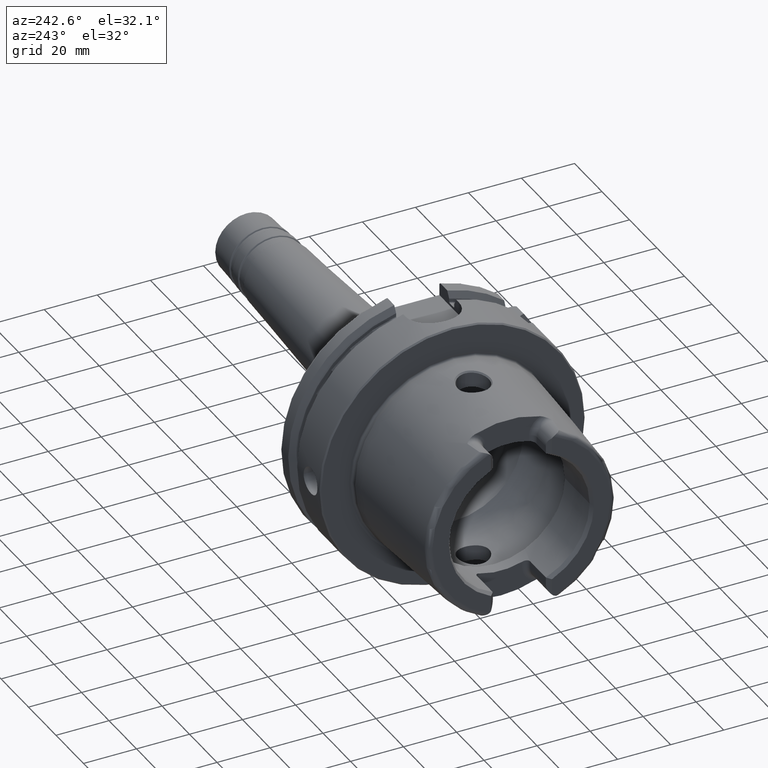
[diagram: clean part render]
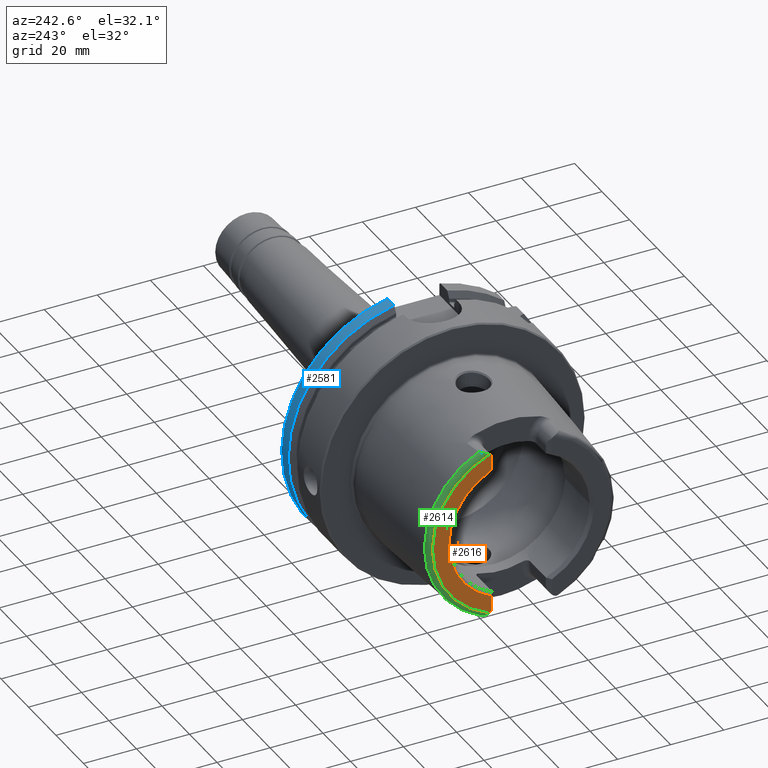
[diagram: same view with three faces highlighted in distinct colors, each labeled with its STEP entity id]
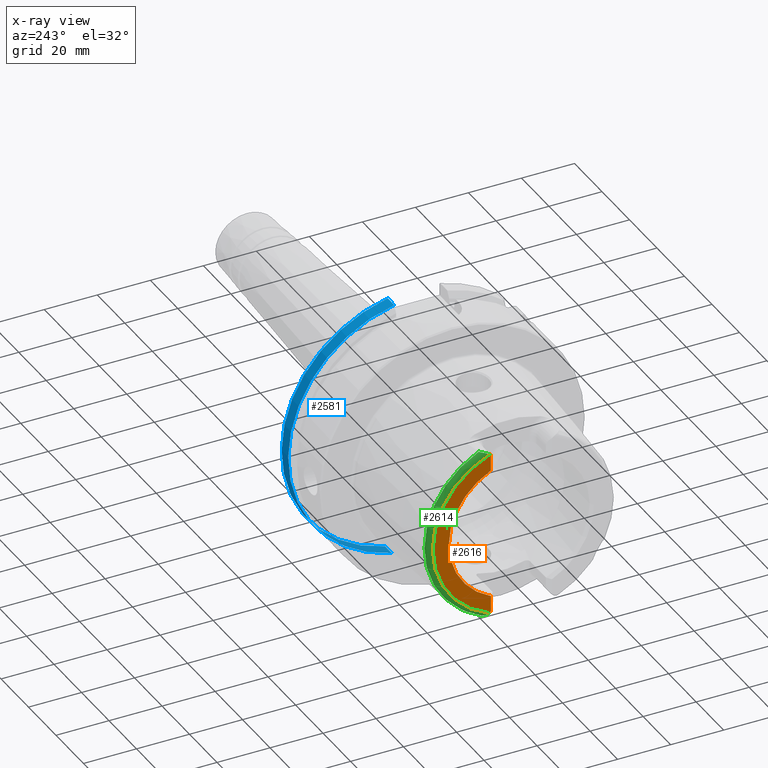
[diagram: x-ray of the same camera — body ghosted, the three highlighted faces saturated]
A machine part, auxiliary view with three faces highlighted in distinct colors.
The next image is the same camera in x-ray (body ghosted, the three faces saturated) — at least one of them is partly hidden behind the body in this view.
Their STEP definitions:

[orange] entity #2616 — the highlighted planar face has unit normal (-1, 0, 0).
#170=PLANE('',#2962);
#202=LINE('',#4135,#316);
#214=LINE('',#4246,#328);
#316=VECTOR('',#3323,10.);
#328=VECTOR('',#3383,10.);
#539=FACE_OUTER_BOUND('',#680,.T.);
#680=EDGE_LOOP('',(#2338,#2339,#2340,#2341,#2342,#2343));
#808=CIRCLE('',#2797,4.88);
#819=CIRCLE('',#2822,4.88);
#889=CIRCLE('',#2953,27.3660254037844);
#890=CIRCLE('',#2957,33.6001839277785);
#1030=VERTEX_POINT('',#4128);
#1033=VERTEX_POINT('',#4133);
#1036=VERTEX_POINT('',#4143);
#1057=VERTEX_POINT('',#4243);
#1058=VERTEX_POINT('',#4245);
#1063=VERTEX_POINT('',#4264);
#1350=EDGE_CURVE('',#1033,#1030,#202,.T.);
#1354=EDGE_CURVE('',#1036,#1030,#808,.T.);
#1381=EDGE_CURVE('',#1057,#1058,#214,.T.);
#1388=EDGE_CURVE('',#1057,#1063,#819,.T.);
#1584=EDGE_CURVE('',#1058,#1033,#889,.T.);
#1586=EDGE_CURVE('',#1036,#1063,#890,.T.);
#2338=ORIENTED_EDGE('',*,*,#1350,.F.);
#2339=ORIENTED_EDGE('',*,*,#1584,.F.);
#2340=ORIENTED_EDGE('',*,*,#1381,.F.);
#2341=ORIENTED_EDGE('',*,*,#1388,.T.);
#2342=ORIENTED_EDGE('',*,*,#1586,.F.);
#2343=ORIENTED_EDGE('',*,*,#1354,.T.);
#2616=ADVANCED_FACE('',(#539),#170,.T.);
#2797=AXIS2_PLACEMENT_3D('',#4144,#3331,#3332);
#2822=AXIS2_PLACEMENT_3D('',#4277,#3392,#3393);
#2953=AXIS2_PLACEMENT_3D('',#5476,#3718,#3719);
#2957=AXIS2_PLACEMENT_3D('',#5481,#3727,#3728);
#2962=AXIS2_PLACEMENT_3D('',#5490,#3738,#3739);
#3323=DIRECTION('',(0.,0.,-1.));
#3331=DIRECTION('center_axis',(-1.,0.,0.));
#3332=DIRECTION('ref_axis',(0.,-0.477884921181368,0.878422450821629));
#3383=DIRECTION('',(0.,0.,-1.));
#3392=DIRECTION('center_axis',(-1.,0.,0.));
#3393=DIRECTION('ref_axis',(0.,1.,0.));
#3718=DIRECTION('center_axis',(-1.,0.,0.));
#3719=DIRECTION('ref_axis',(0.,-1.,0.));
#3727=DIRECTION('center_axis',(1.,0.,0.));
#3728=DIRECTION('ref_axis',(0.,0.,-1.));
#3738=DIRECTION('center_axis',(-1.,0.,0.));
#3739=DIRECTION('ref_axis',(0.,0.,1.));
#4128=CARTESIAN_POINT('',(-50.,11.51,-30.8899431813596));
#4133=CARTESIAN_POINT('',(-50.,11.51,-24.8277918148307));
#4135=CARTESIAN_POINT('',(-50.,11.51,-10.));
#4143=CARTESIAN_POINT('',(-50.,12.0743049948301,-31.355757348091));
#4144=CARTESIAN_POINT('Origin',(-50.,14.89,-27.37));
#4243=CARTESIAN_POINT('',(-50.,11.51,30.8899431813596));
#4245=CARTESIAN_POINT('',(-50.,11.51,24.8277918148307));
#4246=CARTESIAN_POINT('',(-50.,11.51,13.685));
#4264=CARTESIAN_POINT('',(-50.,12.0743049948301,31.355757348091));
#4277=CARTESIAN_POINT('Origin',(-50.,14.89,27.37));
#5476=CARTESIAN_POINT('Origin',(-50.,0.,0.));
#5481=CARTESIAN_POINT('Origin',(-50.,0.,0.));
#5490=CARTESIAN_POINT('Origin',(-50.,33.6001839277785,0.));

[blue] entity #2581 — the highlighted cylindrical surface (partial cylindrical patch) has radius 50 mm, axis along (1, 0, 0).
#111=CYLINDRICAL_SURFACE('',#2896,50.);
#254=LINE('',#5224,#368);
#264=LINE('',#5306,#378);
#368=VECTOR('',#3555,10.);
#378=VECTOR('',#3591,10.);
#504=FACE_OUTER_BOUND('',#645,.T.);
#645=EDGE_LOOP('',(#2161,#2162,#2163,#2164));
#861=CIRCLE('',#2893,50.);
#863=CIRCLE('',#2897,50.);
#1148=VERTEX_POINT('',#5174);
#1156=VERTEX_POINT('',#5220);
#1168=VERTEX_POINT('',#5289);
#1169=VERTEX_POINT('',#5304);
#1512=EDGE_CURVE('',#1148,#1156,#254,.T.);
#1529=EDGE_CURVE('',#1148,#1168,#861,.T.);
#1532=EDGE_CURVE('',#1156,#1169,#863,.T.);
#1533=EDGE_CURVE('',#1169,#1168,#264,.T.);
#2161=ORIENTED_EDGE('',*,*,#1512,.T.);
#2162=ORIENTED_EDGE('',*,*,#1532,.T.);
#2163=ORIENTED_EDGE('',*,*,#1533,.T.);
#2164=ORIENTED_EDGE('',*,*,#1529,.F.);
#2581=ADVANCED_FACE('',(#504),#111,.T.);
#2893=AXIS2_PLACEMENT_3D('',#5290,#3581,#3582);
#2896=AXIS2_PLACEMENT_3D('',#5303,#3587,#3588);
#2897=AXIS2_PLACEMENT_3D('',#5305,#3589,#3590);
#3555=DIRECTION('',(-1.,0.,0.));
#3581=DIRECTION('center_axis',(1.,0.,0.));
#3582=DIRECTION('ref_axis',(0.,0.,-1.));
#3587=DIRECTION('center_axis',(1.,0.,0.));
#3588=DIRECTION('ref_axis',(0.,1.,0.));
#3589=DIRECTION('center_axis',(1.,0.,0.));
#3590=DIRECTION('ref_axis',(0.,0.,-1.));
#3591=DIRECTION('',(1.,0.,0.));
#5174=CARTESIAN_POINT('',(28.,11.,-48.7749935930288));
#5220=CARTESIAN_POINT('',(23.2620290209214,11.,-48.7749935930288));
#5224=CARTESIAN_POINT('',(25.6310145104607,11.,-48.7749935930288));
#5289=CARTESIAN_POINT('',(28.,10.,48.9897948556636));
#5290=CARTESIAN_POINT('Origin',(28.,0.,0.));
#5303=CARTESIAN_POINT('Origin',(25.6310145104607,0.,0.));
#5304=CARTESIAN_POINT('',(23.2620290209214,10.,48.9897948556636));
#5305=CARTESIAN_POINT('Origin',(23.2620290209214,0.,0.));
#5306=CARTESIAN_POINT('',(25.6310145104607,10.,48.9897948556636));

[green] entity #2614 — the highlighted toroidal blend (fillet) surface has major radius 33.6002 mm and minor (blend) radius 2 mm.
#31=B_SPLINE_CURVE_WITH_KNOTS('',3,(#4146,#4147,#4148,#4149,#4150,#4151,
#4152,#4153,#4154,#4155,#4156,#4157),.UNSPECIFIED.,.F.,.F.,(4,2,2,2,2,4),
(-0.744485085130335,-0.701284148098614,-0.656581713087918,-0.531183195108729,
-0.406814905045398,-0.320767863003946),.UNSPECIFIED.);
#36=B_SPLINE_CURVE_WITH_KNOTS('',3,(#4265,#4266,#4267,#4268,#4269,#4270,
#4271,#4272,#4273,#4274,#4275,#4276),.UNSPECIFIED.,.F.,.F.,(4,2,2,2,2,4),
(-0.33049294128038,-0.267730672592795,-0.15978363726818,-0.0785649842435549,
-0.0319753598823885,-6.79221864813266E-5),.UNSPECIFIED.);
#537=FACE_OUTER_BOUND('',#678,.T.);
#678=EDGE_LOOP('',(#2316,#2317,#2318,#2319));
#824=CIRCLE('',#2829,35.5976786130245);
#890=CIRCLE('',#2957,33.6001839277785);
#1036=VERTEX_POINT('',#4143);
#1037=VERTEX_POINT('',#4145);
#1062=VERTEX_POINT('',#4255);
#1063=VERTEX_POINT('',#4264);
#1355=EDGE_CURVE('',#1037,#1036,#31,.T.);
#1387=EDGE_CURVE('',#1063,#1062,#36,.T.);
#1407=EDGE_CURVE('',#1037,#1062,#824,.T.);
#1586=EDGE_CURVE('',#1036,#1063,#890,.T.);
#2316=ORIENTED_EDGE('',*,*,#1387,.T.);
#2317=ORIENTED_EDGE('',*,*,#1407,.F.);
#2318=ORIENTED_EDGE('',*,*,#1355,.T.);
#2319=ORIENTED_EDGE('',*,*,#1586,.T.);
#2499=TOROIDAL_SURFACE('',#2956,33.6001839277785,2.);
#2614=ADVANCED_FACE('',(#537),#2499,.T.);
#2829=AXIS2_PLACEMENT_3D('',#4535,#3410,#3411);
#2956=AXIS2_PLACEMENT_3D('',#5480,#3725,#3726);
#2957=AXIS2_PLACEMENT_3D('',#5481,#3727,#3728);
#3410=DIRECTION('center_axis',(1.,0.,0.));
#3411=DIRECTION('ref_axis',(0.,0.,-1.));
#3725=DIRECTION('center_axis',(1.,0.,0.));
#3726=DIRECTION('ref_axis',(0.,0.,-1.));
#3727=DIRECTION('center_axis',(1.,0.,0.));
#3728=DIRECTION('ref_axis',(0.,0.,-1.));
#4143=CARTESIAN_POINT('',(-50.,12.0743049948301,-31.355757348091));
#4145=CARTESIAN_POINT('',(-48.1000748840304,15.0787152148571,-32.2463497175327));
#4146=CARTESIAN_POINT('Ctrl Pts',(-48.1000748840304,15.0787152148571,-32.2463497175327));
#4147=CARTESIAN_POINT('Ctrl Pts',(-48.2105289331959,15.0644723890649,-32.2469009162952));
#4148=CARTESIAN_POINT('Ctrl Pts',(-48.3152849211513,15.0274043790922,-32.2483365520296));
#4149=CARTESIAN_POINT('Ctrl Pts',(-48.5158350355592,14.9227249886344,-32.2501807122049));
#4150=CARTESIAN_POINT('Ctrl Pts',(-48.6114759122293,14.853948633775,-32.2504380099703));
#4151=CARTESIAN_POINT('Ctrl Pts',(-48.9444340259589,14.5699075364914,-32.2439932048825));
#4152=CARTESIAN_POINT('Ctrl Pts',(-49.1873237794489,14.2618237213855,-32.2229124522755));
#4153=CARTESIAN_POINT('Ctrl Pts',(-49.6096022065355,13.5557805634606,-32.0777680620402));
#4154=CARTESIAN_POINT('Ctrl Pts',(-49.7790094341757,13.1775605707035,-31.9575317726829));
#4155=CARTESIAN_POINT('Ctrl Pts',(-49.9573633441756,12.558596693048,-31.6661869684752));
#4156=CARTESIAN_POINT('Ctrl Pts',(-50.,12.3094122367882,-31.5218463066117));
#4157=CARTESIAN_POINT('Ctrl Pts',(-50.,12.0743049948301,-31.355757348091));
#4255=CARTESIAN_POINT('',(-48.1000748840304,15.0787152148571,32.2463497175327));
#4264=CARTESIAN_POINT('',(-50.,12.0743049948301,31.355757348091));
#4265=CARTESIAN_POINT('Ctrl Pts',(-50.,12.0743049948301,31.355757348091));
#4266=CARTESIAN_POINT('Ctrl Pts',(-50.,12.2864160042027,31.5056008677719));
#4267=CARTESIAN_POINT('Ctrl Pts',(-49.965181241452,12.5182840828266,31.6438016135975));
#4268=CARTESIAN_POINT('Ctrl Pts',(-49.780095292634,13.1934814711235,31.9701190766011));
#4269=CARTESIAN_POINT('Ctrl Pts',(-49.5793805506892,13.6220310736955,32.097613465566));
#4270=CARTESIAN_POINT('Ctrl Pts',(-49.170216000735,14.274989330902,32.2194840260055));
#4271=CARTESIAN_POINT('Ctrl Pts',(-48.9762638716764,14.5215824129494,32.2396097025416));
#4272=CARTESIAN_POINT('Ctrl Pts',(-48.6666306582889,14.8133702905837,32.2505591140316));
#4273=CARTESIAN_POINT('Ctrl Pts',(-48.5389792055844,14.9127554064334,32.2504492219699));
#4274=CARTESIAN_POINT('Ctrl Pts',(-48.3058528414878,15.0307034754738,32.2482068363322));
#4275=CARTESIAN_POINT('Ctrl Pts',(-48.2055479344945,15.0651146787529,32.2468760596209));
#4276=CARTESIAN_POINT('Ctrl Pts',(-48.1000748840303,15.0787152148571,32.2463497175327));
#4535=CARTESIAN_POINT('Origin',(-48.1000748840304,0.,0.));
#5480=CARTESIAN_POINT('Origin',(-48.,0.,0.));
#5481=CARTESIAN_POINT('Origin',(-50.,0.,0.));